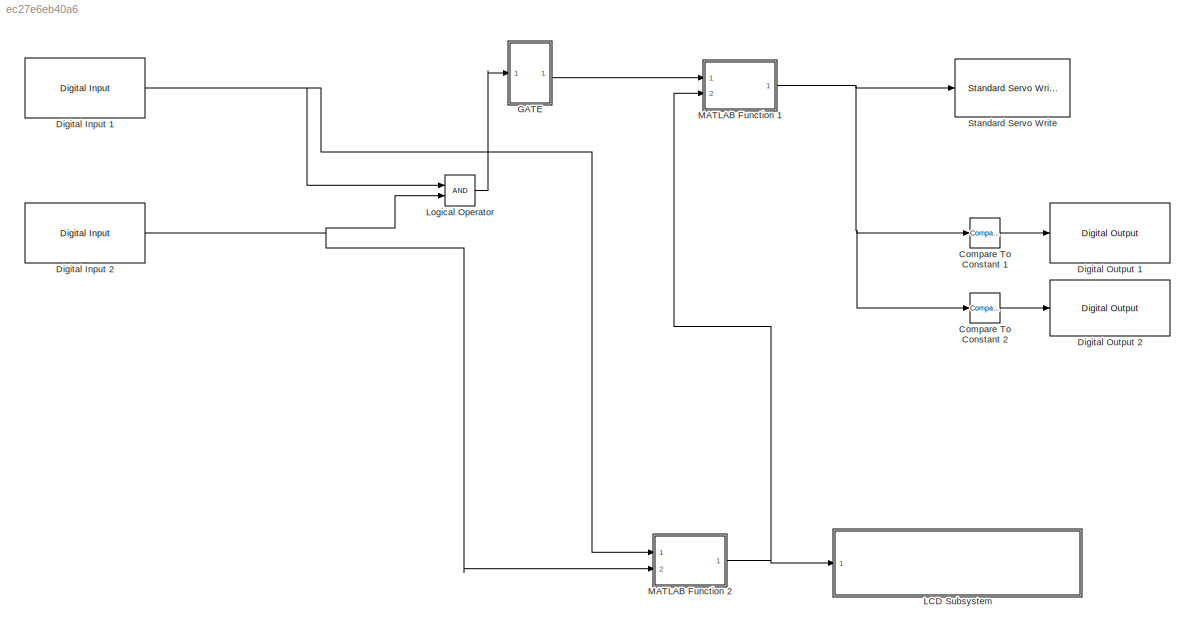
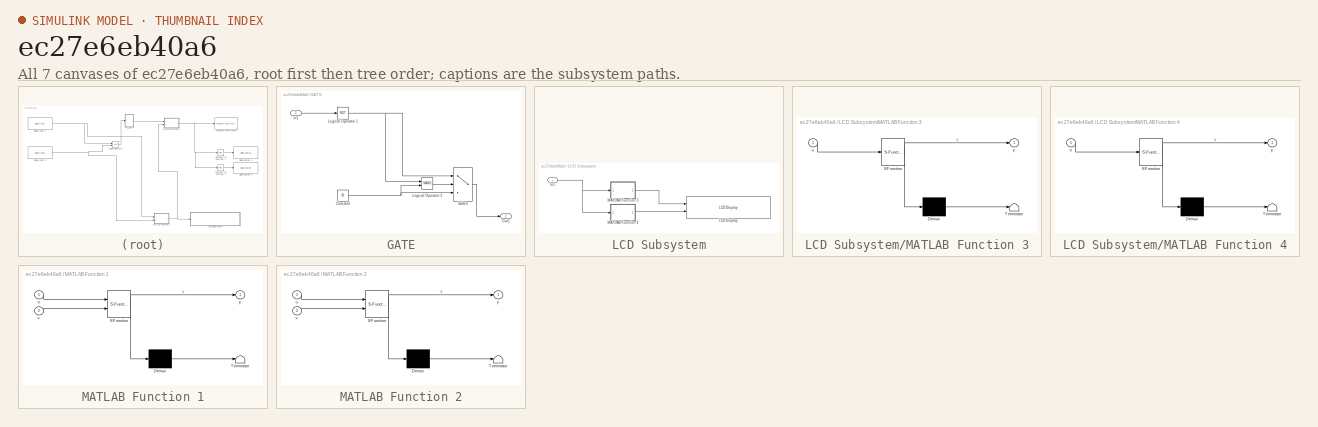
[diagram: thumbnail index - all 7 canvases of the model, root first then tree order]
MODEL slx_ec27e6eb40a6
KIND model
CONFIG AbsTol = auto
CONFIG EnableMultiTasking = on
CONFIG FixedStep = auto
CONFIG MaxStep = auto
CONFIG MinStep = auto
CONFIG RelTol = 1e-3
CONFIG SampleTimeConstraint = Unconstrained
CONFIG Solver = FixedStepAuto
CONFIG SolverName = FixedStepAuto
CONFIG StartTime = 0.0
CONFIG StopTime = inf
BLOCK [Reference] Compare To Constant 1  REF=simulink/Logic and Bit
Operations/Compare
To Constant
  Ports = [1, 1]
  SourceBlock = simulink/Logic and Bit\nOperations/Compare\nTo Constant
  SourceProductBaseCode = SL
  SourceProductName = Simulink
  SourceType = Compare To Constant
BLOCK [Reference] Compare To Constant 2  REF=simulink/Logic and Bit
Operations/Compare
To Constant
  Ports = [1, 1]
  SourceBlock = simulink/Logic and Bit\nOperations/Compare\nTo Constant
  SourceProductBaseCode = SL
  SourceProductName = Simulink
  SourceType = Compare To Constant
BLOCK [Reference] Digital Input 1  REF=arduinolib/Digital Input
  Ports = [0, 1]
  SourceBlock = arduinolib/Digital Input
  SourceProductBaseCode = ARDUINO
  SourceProductName = Simulink Support Package for Arduino Hardware
  SourceType = Arduino Digital Input
BLOCK [Reference] Digital Input 2  REF=arduinolib/Digital Input
  Ports = [0, 1]
  SourceBlock = arduinolib/Digital Input
  SourceProductBaseCode = ARDUINO
  SourceProductName = Simulink Support Package for Arduino Hardware
  SourceType = Arduino Digital Input
BLOCK [Reference] Digital Output 1  REF=arduinolib/Digital Output
  Ports = [1]
  SourceBlock = arduinolib/Digital Output
  SourceProductBaseCode = ARDUINO
  SourceProductName = Simulink Support Package for Arduino Hardware
  SourceType = Arduino Digital Output
BLOCK [Reference] Digital Output 2  REF=arduinolib/Digital Output
  Ports = [1]
  SourceBlock = arduinolib/Digital Output
  SourceProductBaseCode = ARDUINO
  SourceProductName = Simulink Support Package for Arduino Hardware
  SourceType = Arduino Digital Output
BLOCK [SubSystem] GATE
  Ports = [1, 1]
  RequestExecContextInheritance = off
BLOCK [Constant] GATE/Constant
  Value = 90
  VectorParams1D = off
BLOCK [Inport] GATE/In1
  IconDisplay = Port number
BLOCK [Logic] GATE/Logical Operator 1
  AllPortsSameDT = off
  Inputs = 1
  Operator = NOT
  OutDataTypeStr = boolean
  Ports = [1, 1]
BLOCK [Logic] GATE/Logical Operator 2
  AllPortsSameDT = off
  Operator = NAND
  OutDataTypeStr = boolean
  Ports = [2, 1]
BLOCK [Outport] GATE/Out1
  IconDisplay = Port number
BLOCK [Switch] GATE/Switch
  InputSameDT = off
  SaturateOnIntegerOverflow = off
BLOCK [SubSystem] LCD Subsystem
  Ports = [1]
  RequestExecContextInheritance = off
BLOCK [Inport] LCD Subsystem/In1
  IconDisplay = Port number
BLOCK [Reference] LCD Subsystem/LCD Display  REF=LCDlib/LCD Display
  Ports = [2]
  SourceBlock = LCDlib/LCD Display
  SourceProductName = LCD Library
  SourceType = LiquidCrystalDisplay.block.LCD
BLOCK [SubSystem] LCD Subsystem/MATLAB Function 3
  ErrorFcn = Stateflow.Translate.translate
  PermitHierarchicalResolution = ExplicitOnly
  Ports = [1, 1]
  RequestExecContextInheritance = off
  SFBlockType = MATLAB Function
  TreatAsAtomicUnit = on
BLOCK [Demux] LCD Subsystem/MATLAB Function 3/ Demux 
  Outputs = 1
  Ports = [1, 1]
BLOCK [S-Function] LCD Subsystem/MATLAB Function 3/ SFunction 
  EnableBusSupport = on
  FunctionName = sf_sfun
  PortCounts = [1 2]
  Ports = [1, 2]
  SFcnIsStateOwnerBlock = off
  SFunctionDeploymentMode = off
  Tag = Stateflow S-Function Final 2
BLOCK [Terminator] LCD Subsystem/MATLAB Function 3/ Terminator 
BLOCK [Inport] LCD Subsystem/MATLAB Function 3/u
  IconDisplay = Port number
BLOCK [Outport] LCD Subsystem/MATLAB Function 3/y
  IconDisplay = Port number
BLOCK [SubSystem] LCD Subsystem/MATLAB Function 4
  ErrorFcn = Stateflow.Translate.translate
  PermitHierarchicalResolution = ExplicitOnly
  Ports = [1, 1]
  RequestExecContextInheritance = off
  SFBlockType = MATLAB Function
  TreatAsAtomicUnit = on
BLOCK [Demux] LCD Subsystem/MATLAB Function 4/ Demux 
  Outputs = 1
  Ports = [1, 1]
BLOCK [S-Function] LCD Subsystem/MATLAB Function 4/ SFunction 
  EnableBusSupport = on
  FunctionName = sf_sfun
  PortCounts = [1 2]
  Ports = [1, 2]
  SFcnIsStateOwnerBlock = off
  SFunctionDeploymentMode = off
  Tag = Stateflow S-Function Final 1
BLOCK [Terminator] LCD Subsystem/MATLAB Function 4/ Terminator 
BLOCK [Inport] LCD Subsystem/MATLAB Function 4/u
  IconDisplay = Port number
BLOCK [Outport] LCD Subsystem/MATLAB Function 4/y
  IconDisplay = Port number
BLOCK [Logic] Logical Operator
  AllPortsSameDT = off
  OutDataTypeStr = boolean
  Ports = [2, 1]
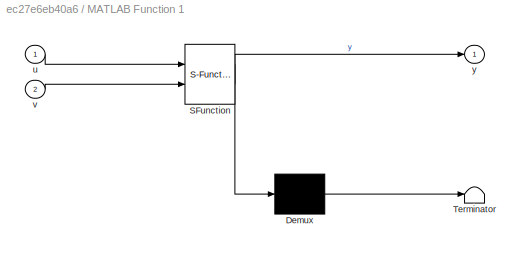
BLOCK [SubSystem] MATLAB Function 1
  ErrorFcn = Stateflow.Translate.translate
  PermitHierarchicalResolution = ExplicitOnly
  Ports = [2, 1]
  RequestExecContextInheritance = off
  SFBlockType = MATLAB Function
  TreatAsAtomicUnit = on
BLOCK [Demux] MATLAB Function 1/ Demux 
  Outputs = 1
  Ports = [1, 1]
BLOCK [S-Function] MATLAB Function 1/ SFunction 
  EnableBusSupport = on
  FunctionName = sf_sfun
  PortCounts = [2 2]
  Ports = [2, 2]
  SFcnIsStateOwnerBlock = off
  SFunctionDeploymentMode = off
  Tag = Stateflow S-Function Final 4
BLOCK [Terminator] MATLAB Function 1/ Terminator 
BLOCK [Inport] MATLAB Function 1/u
  IconDisplay = Port number
BLOCK [Inport] MATLAB Function 1/v
  IconDisplay = Port number
  Port = 2
BLOCK [Outport] MATLAB Function 1/y
  IconDisplay = Port number
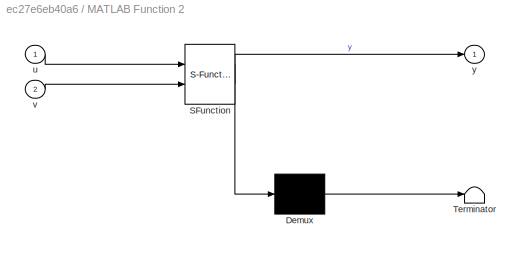
BLOCK [SubSystem] MATLAB Function 2
  ErrorFcn = Stateflow.Translate.translate
  PermitHierarchicalResolution = ExplicitOnly
  Ports = [2, 1]
  RequestExecContextInheritance = off
  SFBlockType = MATLAB Function
  TreatAsAtomicUnit = on
BLOCK [Demux] MATLAB Function 2/ Demux 
  Outputs = 1
  Ports = [1, 1]
BLOCK [S-Function] MATLAB Function 2/ SFunction 
  EnableBusSupport = on
  FunctionName = sf_sfun
  PortCounts = [2 2]
  Ports = [2, 2]
  SFcnIsStateOwnerBlock = off
  SFunctionDeploymentMode = off
  Tag = Stateflow S-Function Final 3
BLOCK [Terminator] MATLAB Function 2/ Terminator 
BLOCK [Inport] MATLAB Function 2/u
  IconDisplay = Port number
BLOCK [Inport] MATLAB Function 2/v
  IconDisplay = Port number
  Port = 2
BLOCK [Outport] MATLAB Function 2/y
  IconDisplay = Port number
BLOCK [Reference] Standard Servo Write  REF=arduinolib/Standard Servo Write
  Ports = [1]
  SourceBlock = arduinolib/Standard Servo Write
  SourceProductBaseCode = ARDUINO
  SourceProductName = Simulink Support Package for Arduino Hardware
  SourceType = Arduino Standard Servo Write
LINE Compare To Constant 1:1 -> Digital Output 1:1
LINE Compare To Constant 2:1 -> Digital Output 2:1
NET Digital Input 1:1 -> Logical Operator:1, MATLAB Function 2:1
NET Digital Input 2:1 -> Logical Operator:2, MATLAB Function 2:2
NET GATE/Constant:1 -> GATE/Logical Operator 2:2, GATE/Switch:3
LINE GATE/In1:1 -> GATE/Logical Operator 1:1
NET GATE/Logical Operator 1:1 -> GATE/Logical Operator 2:1, GATE/Switch:1
LINE GATE/Logical Operator 2:1 -> GATE/Switch:2
LINE GATE/Switch:1 -> GATE/Out1:1
LINE GATE:1 -> MATLAB Function 1:1
NET LCD Subsystem/In1:1 -> LCD Subsystem/MATLAB Function 3:1, LCD Subsystem/MATLAB Function 4:1
LINE LCD Subsystem/MATLAB Function 3:1 -> LCD Subsystem/LCD Display:1
LINE LCD Subsystem/MATLAB Function 4:1 -> LCD Subsystem/LCD Display:2
LINE Logical Operator:1 -> GATE:1
NET MATLAB Function 1:1 -> Compare To Constant 1:1, Compare To Constant 2:1, Standard Servo Write:1
NET MATLAB Function 2:1 -> LCD Subsystem:1, MATLAB Function 1:2
note: NET lines group one-source signal fan-out (src -> all destinations, sorted); 1:1 wires keep LINE
CHART LCD Subsystem/MATLAB Function 4 states=1 transitions=1
  STATE_LABEL 'eML_blk_kernel()'
  STATE_LABEL 'SCRIPT:\nfunction y = fcn(u)\nif u<0\n    u = 0;\nelseif u>13\n    u = 13;\nend\nswitch u\n    case 13\n        y=[78 111 46 32 111 102 32 115 112 111 116 115 58 32 49 51];\n    case 12\n        y=[78 111 46 32 111 102 32 115 112 111 116 115 58 32 49 50];\n    case 11\n        y=[78 111 46 32 111 102 32 115 112 111 116 115 58 32 49 49];\n    case 10\n        y=[78 111 46 32 111 102 32 115 112 111 116 115 58 32 4...<+813ch>'
CHART LCD Subsystem/MATLAB Function 3 states=1 transitions=1
  STATE_LABEL 'eML_blk_kernel()'
  STATE_LABEL 'SCRIPT:\nfunction y = fcn(u)\nif u>0\n    y=[87 101 108 99 111 109 101 32 32 32 32 32 32 32 32];\nelse \n    y=[80 108 122 46 32 99 111 109 101 32 108 97 116 101 114];\nend\n'
CHART MATLAB Function 2 states=1 transitions=1
  STATE_LABEL 'eML_blk_kernel()'
  STATE_LABEL 'SCRIPT:\nfunction y = fcn(u,v)\npersistent n;\ntotal = 13;\nif isempty(n)\n    n = 0;\nend\nif u==0\n    n = n+1;\nelseif v==0\n    n = n-1;\nend\ny = total - n;\nif y>13\n    n=0;\nelseif y<0\n    n=13;\nend\n'
CHART MATLAB Function 1 states=1 transitions=1
  STATE_LABEL 'eML_blk_kernel()'
  STATE_LABEL 'SCRIPT:\nfunction y = fcn(u,v)\nif v<=13 && v>=0\n    y = u;\nelse\n    y = 0;\nend'
